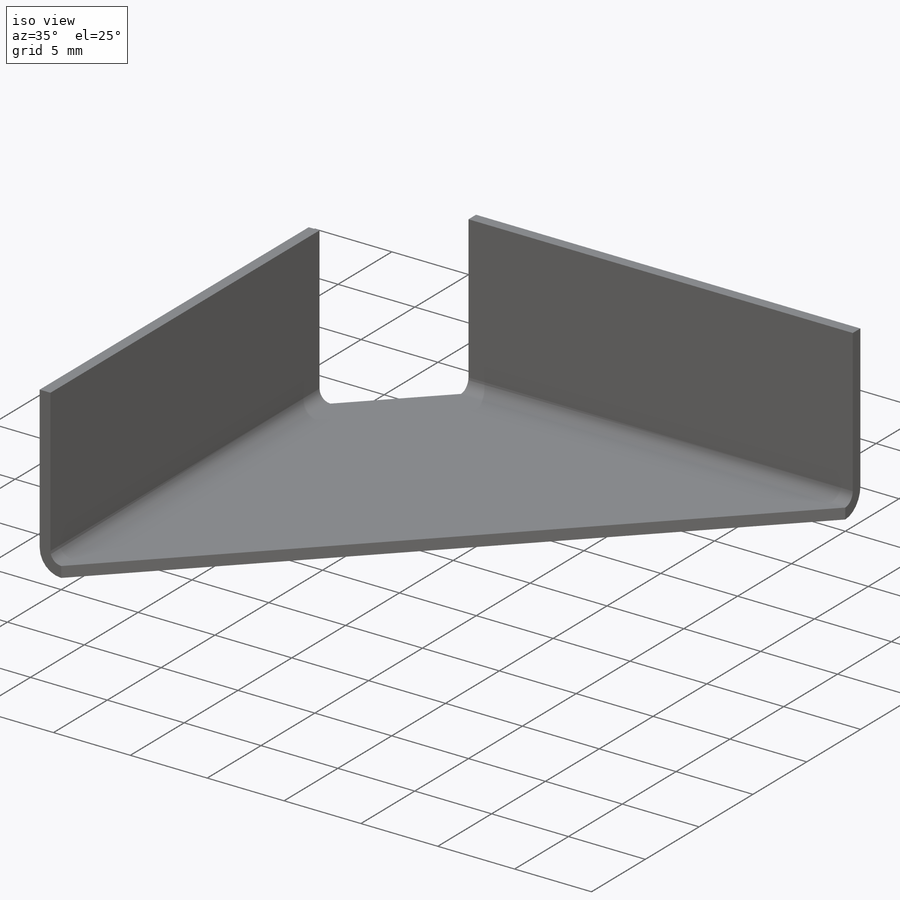
[diagram: iso view]
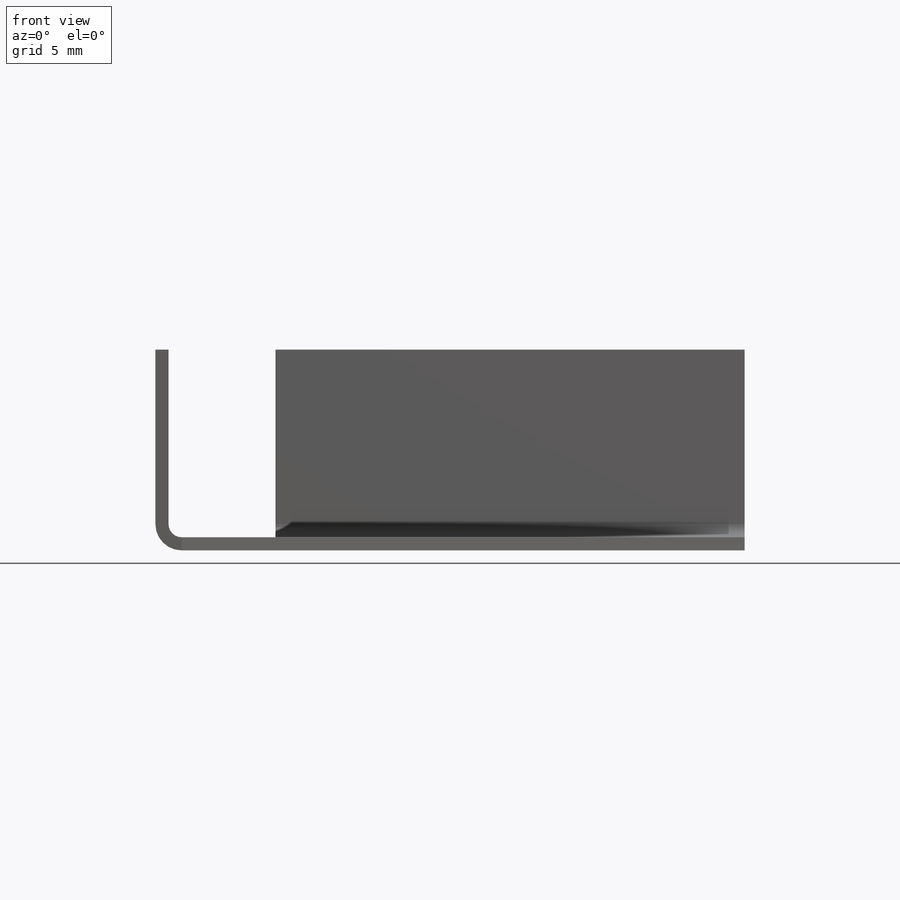
[diagram: front view]
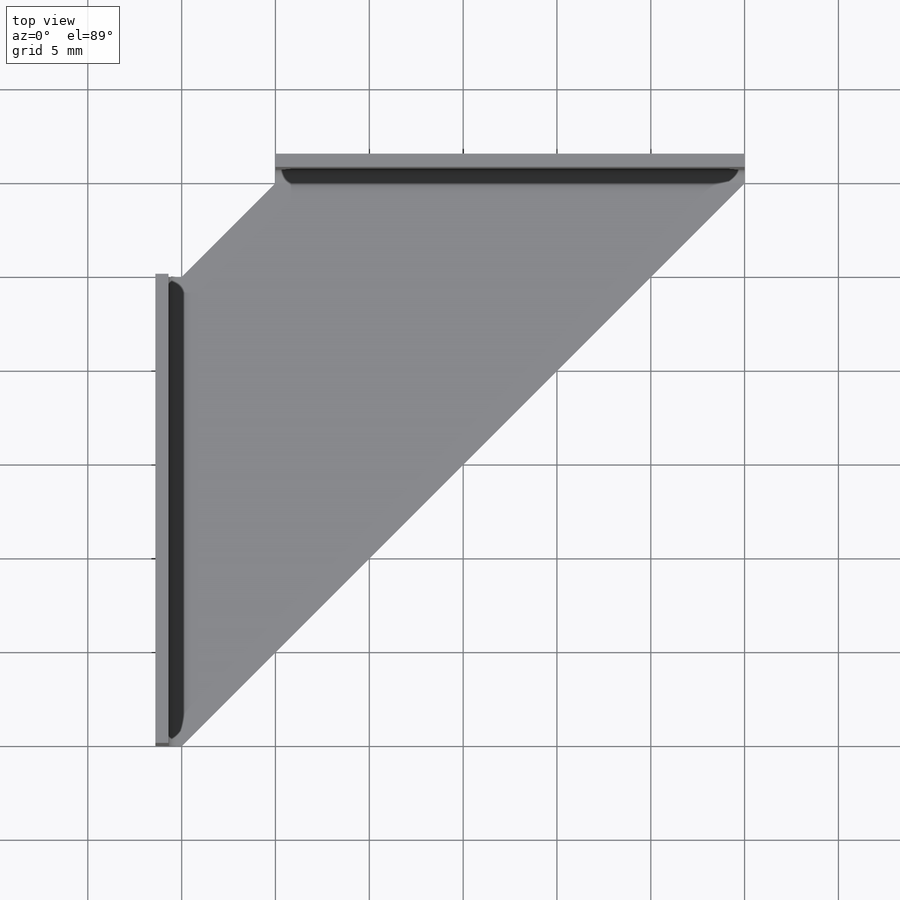
[diagram: top view]
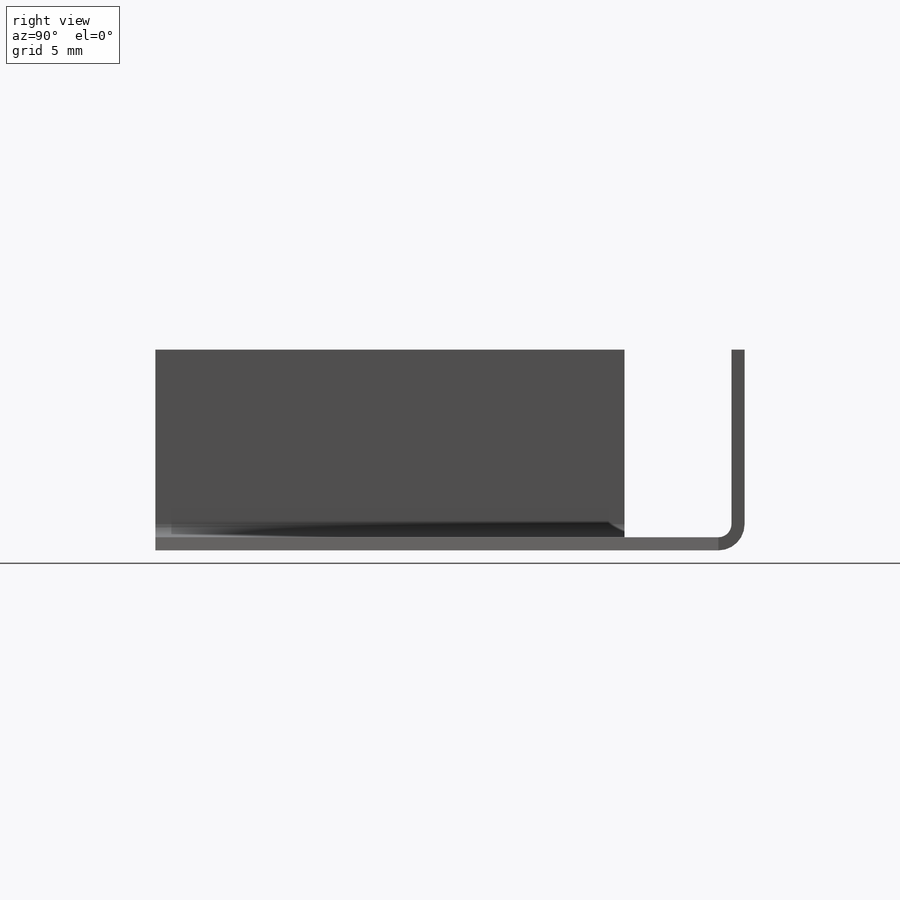
[diagram: right view]
SOLIDWORKS PART (.sldprt)
format: sldprt  version: not decoded by parser v0  size: 664,064 bytes
history: native  units: mm
features: sketch x9, sheet_metal_op x5, cut_extrude x2, material x1 + 4 further entries (+11 scaffold rows collapsed; 1 parser-record rows omitted)
feature tree (33):
  scaffold x11  (default folders/planes/origin — collapsed)
  material  "6061 Alloy"
  sketch  "Sketch2"  dims[D1=30.0mm]
  sheet_metal_op  "Sheet-Metal1"
  sheet_metal_op  "Base-Flange1"
  sketch  "Sketch16"
  sketch  "Sketch17"  dims[D1=0.7mm D4=90.0deg D5=3.0 D8=0.5mm D9=0.5mm]
  sheet_metal_op  "EdgeBend4"  Edge-Flange1=0
  sketch  "Sketch9"
  sketch  "Sketch10"
  sheet_metal_op  "EdgeBend1"
  sheet_metal_op  "EdgeBend2"
  sketch  "Sketch11"  dims[c1.D1=3.4mm c1.D2=5.0mm c1.D3=15.0mm c2.D2=~9.685168mm]
  cut_extrude  "Cut-Extrude1"  [1 undecoded]
  sketch  "Sketch18"  dims[D1=3.4mm D2=15.0mm]
  cut_extrude  "Cut-Extrude2"  [1 undecoded]
  "Flat-Pattern1"
  sketch  "Bend-Lines1"
  sketch  "Bounding-Box1"
  "Flatten-<EdgeBend2>1"
  "Flatten-<EdgeBend3>1"
  "Flatten-<EdgeBend4>1"
  parser-record x1  (decoder bookkeeping rows leaked as tree rows — omitted from the tree; the rows remain in map.json)
decode coverage: 5 of 16 modeling features carry decoded parameters; 4 rows unclassified (native names shown)
note: ~ marks probable driven/reference dimensions
note: 2 parameter values undecoded
note: suppression state not decoded; provenance and decode notes live in map.json
